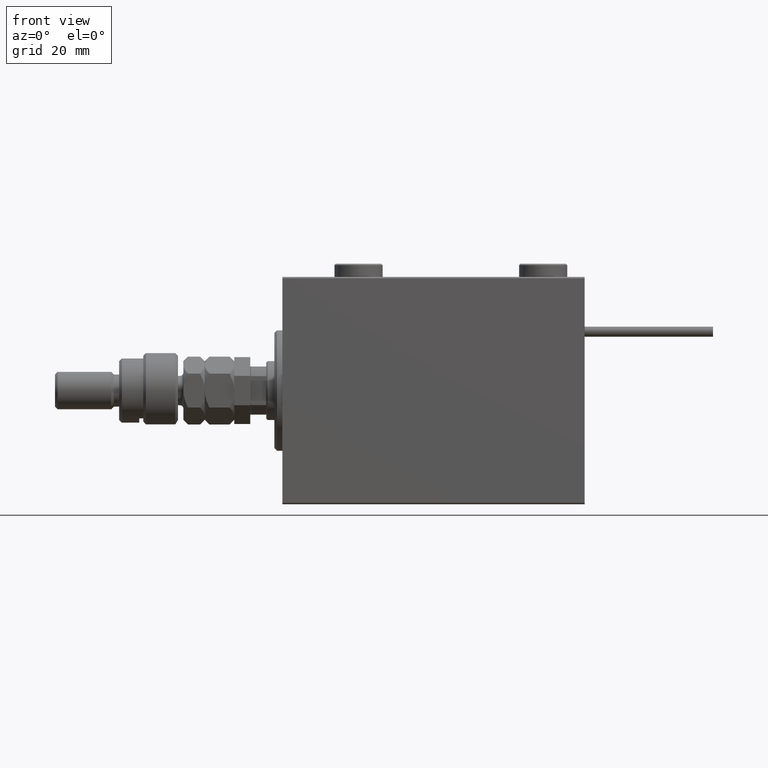
[diagram: clean part render]
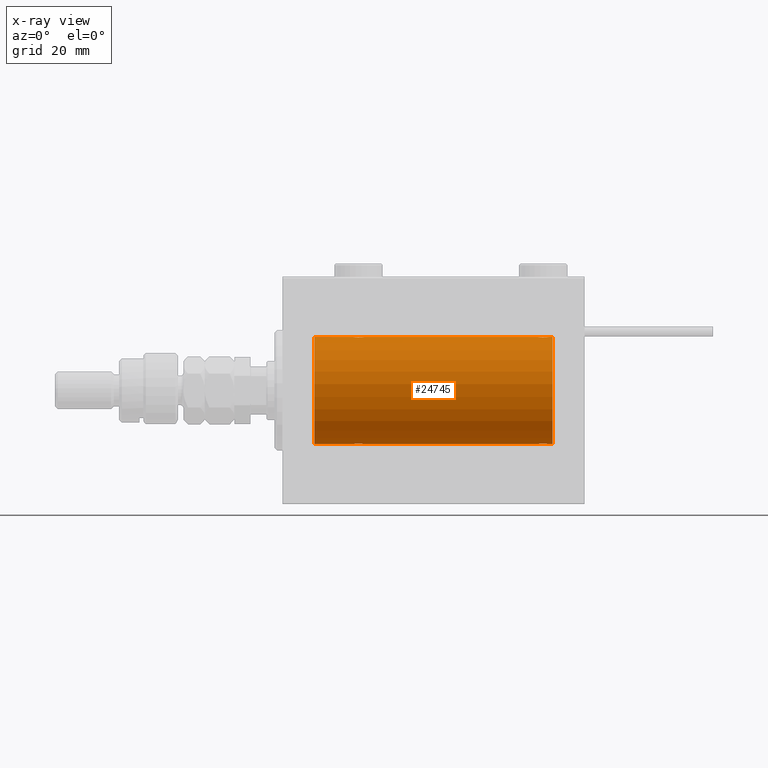
[diagram: x-ray — body ghosted, one internal face saturated and labeled with its STEP entity id]
A machine part, front view, then the same camera in x-ray: the body is ghosted and one INTERNAL B-rep face — a face not visible from any outside direction — is saturated and labeled: STEP entity #24745.
In plain terms, the highlighted cylindrical surface (partial cylindrical patch) has radius 20 mm, axis along (-1, -0, -0).
Its self-contained STEP definition (entity closure, byte-faithful):
#1023 = DIRECTION ( 'NONE',  ( -1.000000000000000000, -0.000000000000000000, -0.000000000000000000 ) ) ;
#1105 = VERTEX_POINT ( 'NONE', #16637 ) ;
#1265 = CARTESIAN_POINT ( 'NONE',  ( 26.50000000000001066, -0.2644051013331030209, -20.00000000000000355 ) ) ;
#1405 = DIRECTION ( 'NONE',  ( -1.000000000000000000, 0.000000000000000000, 0.000000000000000000 ) ) ;
#1446 = CARTESIAN_POINT ( 'NONE',  ( 28.76077256031567586, -1.987205673487810298, 19.90104673894210663 ) ) ;
#1550 = CARTESIAN_POINT ( 'NONE',  ( 28.23922743968432059, -1.987205673487808966, -19.90104673894211018 ) ) ;
#2164 = B_SPLINE_CURVE_WITH_KNOTS ( 'NONE', 3,
 ( #3254, #46835, #7190, #32098, #11661, #49200, #2707, #32922, #45795, #19782, #45246, #10837, #24238, #20333, #53680, #37392, #2975, #27894, #44975, #15317, #28166, #11113, #23977, #37116, #41044, #28443 ),
 .UNSPECIFIED., .F., .F.,
 ( 4, 2, 2, 2, 2, 2, 2, 2, 2, 2, 2, 2, 4 ),
 ( 0.006256819553329824070, 0.007038738568778795009, 0.007820657584227765080, 0.008211617091952250549, 0.008602576599676736019, 0.008993536107401221488, 0.009384495615125706958, 0.009775455122850190692, 0.01016641463057467790, 0.01055737413829916163, 0.01094833364602364884, 0.01173025266147261630, 0.01251217167692158724 ),
 .UNSPECIFIED. ) ;
#2376 = CARTESIAN_POINT ( 'NONE',  ( 27.98351467081095123, -1.936551476643005198, -19.90603968831098314 ) ) ;
#2442 = CARTESIAN_POINT ( 'NONE',  ( 101.0000000000000000, 0.000000000000000000, 20.00000000000000000 ) ) ;
#2707 = CARTESIAN_POINT ( 'NONE',  ( 98.72028945794467347, -1.589957321664213330, -19.93683391378736758 ) ) ;
#2975 = CARTESIAN_POINT ( 'NONE',  ( 96.85651471266960755, -1.898187925611348081, -19.90978194174746818 ) ) ;
#2977 = DIRECTION ( 'NONE',  ( -1.000000000000000000, -0.000000000000000000, -0.000000000000000000 ) ) ;
#3254 = CARTESIAN_POINT ( 'NONE',  ( 99.50000000000000000, 2.449293582762473501E-15, -20.00000000000000000 ) ) ;
#3536 = CARTESIAN_POINT ( 'NONE',  ( 30.50000000000000000, 2.449293582768389958E-15, -20.00000000000000000 ) ) ;
#3632 = LINE ( 'NONE', #28547, #32614 ) ;
#4454 = EDGE_CURVE ( 'NONE', #11303, #19497, #4480, .T. ) ;
#4480 = LINE ( 'NONE', #39448, #37216 ) ;
#5043 = EDGE_CURVE ( 'NONE', #31978, #38219, #50668, .T. ) ;
#5076 = AXIS2_PLACEMENT_3D ( 'NONE', #18760, #1405, #18480 ) ;
#5659 = CARTESIAN_POINT ( 'NONE',  ( 27.85369326075355545, -1.897222639860597360, 19.90987429971497491 ) ) ;
#5668 = EDGE_CURVE ( 'NONE', #28377, #22302, #47988, .T. ) ;
#5935 = CARTESIAN_POINT ( 'NONE',  ( 26.90058475115969827, -1.228758402364236391, 19.96307487248084556 ) ) ;
#6041 = CARTESIAN_POINT ( 'NONE',  ( 27.28194580527848601, -1.591668229360197140, -19.93669678979812332 ) ) ;
#6186 = CARTESIAN_POINT ( 'NONE',  ( 95.55244937117491588, -0.5243189001515019543, 19.99457699142849876 ) ) ;
#7190 = CARTESIAN_POINT ( 'NONE',  ( 99.44755062882506991, -0.5243189001514980685, -19.99457699142850231 ) ) ;
#8069 = VERTEX_POINT ( 'NONE', #20431 ) ;
#8334 = ORIENTED_EDGE ( 'NONE', *, *, #55215, .T. ) ;
#8596 = ORIENTED_EDGE ( 'NONE', *, *, #5043, .F. ) ;
#9747 = VECTOR ( 'NONE', #2977, 1000.000000000000000 ) ;
#10125 = CARTESIAN_POINT ( 'NONE',  ( 29.14348528733041377, -1.898187925611340088, 19.90978194174746818 ) ) ;
#10224 = CARTESIAN_POINT ( 'NONE',  ( 29.38829437207091999, -1.796691196322316664, -19.91919800395357143 ) ) ;
#10407 = CARTESIAN_POINT ( 'NONE',  ( 30.24686976303072328, -1.008108445278687926, 19.97602680192586888 ) ) ;
#10538 = VECTOR ( 'NONE', #41898, 1000.000000000000000 ) ;
#10787 = CARTESIAN_POINT ( 'NONE',  ( 27.61420923329272981, -1.797933656607917596, -19.91908554465558367 ) ) ;
#10837 = CARTESIAN_POINT ( 'NONE',  ( 97.76358144091416591, -1.986835489085820639, -19.90108393514801222 ) ) ;
#10888 = EDGE_CURVE ( 'NONE', #1105, #28377, #3632, .T. ) ;
#10896 = CARTESIAN_POINT ( 'NONE',  ( 26.50000000000000355, -1.552596590610734385E-23, 20.00000000000000000 ) ) ;
#10925 = CARTESIAN_POINT ( 'NONE',  ( 96.61170562792906935, -1.796691196322320216, 19.91919800395356788 ) ) ;
#11113 = CARTESIAN_POINT ( 'NONE',  ( 95.90225308445270969, -1.230936344679285144, -19.96293863536309843 ) ) ;
#11303 = VERTEX_POINT ( 'NONE', #34182 ) ;
#11661 = CARTESIAN_POINT ( 'NONE',  ( 99.09941524884030173, -1.228758402364235724, -19.96307487248084556 ) ) ;
#11806 = VECTOR ( 'NONE', #45984, 1000.000000000000000 ) ;
#12060 = EDGE_CURVE ( 'NONE', #13365, #8069, #25339, .T. ) ;
#12215 = AXIS2_PLACEMENT_3D ( 'NONE', #41991, #51254, #28843 ) ;
#12265 = ORIENTED_EDGE ( 'NONE', *, *, #29402, .F. ) ;
#12523 = CARTESIAN_POINT ( 'NONE',  ( 101.0000000000000000, 0.000000000000000000, 20.00000000000000000 ) ) ;
#12691 = ORIENTED_EDGE ( 'NONE', *, *, #20873, .T. ) ;
#13365 = VERTEX_POINT ( 'NONE', #10896 ) ;
#13637 = CARTESIAN_POINT ( 'NONE',  ( 99.50000000000000000, 9.984436361108698300E-16, 20.00000000000000000 ) ) ;
#14181 = CARTESIAN_POINT ( 'NONE',  ( 29.01923512135276795, -1.935816449315124643, -19.90611141657401717 ) ) ;
#14204 = EDGE_CURVE ( 'NONE', #47668, #46268, #42547, .T. ) ;
#14221 = CARTESIAN_POINT ( 'NONE',  ( 101.0000000000000000, 0.000000000000000000, 0.000000000000000000 ) ) ;
#14350 = CARTESIAN_POINT ( 'NONE',  ( 26.75174086539981033, -1.005710574260841206, 19.97614991974274190 ) ) ;
#14618 = CARTESIAN_POINT ( 'NONE',  ( 27.27971054205535850, -1.589957321664211998, 19.93683391378736047 ) ) ;
#14863 = CARTESIAN_POINT ( 'NONE',  ( 98.01648532918906653, -1.936551476643001202, 19.90603968831098669 ) ) ;
#14898 = CARTESIAN_POINT ( 'NONE',  ( 26.55244937117492299, -0.5243189001515023984, 19.99457699142850586 ) ) ;
#14999 = CARTESIAN_POINT ( 'NONE',  ( 27.17903093152710525, -1.507328959728492457, -19.94333197382385592 ) ) ;
#15166 = ORIENTED_EDGE ( 'NONE', *, *, #12060, .T. ) ;
#15202 = VERTEX_POINT ( 'NONE', #17313 ) ;
#15317 = CARTESIAN_POINT ( 'NONE',  ( 96.28194580527851087, -1.591668229360199804, -19.93669678979812687 ) ) ;
#15671 = CARTESIAN_POINT ( 'NONE',  ( 96.85369326075360163, -1.897222639860597360, 19.90987429971497491 ) ) ;
#15941 = CARTESIAN_POINT ( 'NONE',  ( 98.71805419472153176, -1.591668229360190034, 19.93669678979813042 ) ) ;
#16637 = CARTESIAN_POINT ( 'NONE',  ( 26.50000000000000355, -3.809869420541414000E-15, -20.00000000000000000 ) ) ;
#16686 = EDGE_CURVE ( 'NONE', #47668, #8069, #33784, .T. ) ;
#17297 = ORIENTED_EDGE ( 'NONE', *, *, #4454, .T. ) ;
#17313 = CARTESIAN_POINT ( 'NONE',  ( 99.50000000000000000, 2.449293582762473501E-15, -20.00000000000000000 ) ) ;
#18093 = ORIENTED_EDGE ( 'NONE', *, *, #35972, .F. ) ;
#18135 = VECTOR ( 'NONE', #54222, 1000.000000000000000 ) ;
#18342 = CARTESIAN_POINT ( 'NONE',  ( 30.49999999999999645, -0.2610801504281900498, -19.99999999999999645 ) ) ;
#18403 = EDGE_LOOP ( 'NONE', ( #8596, #8334, #44403, #17297, #12691, #31896, #39699, #18093, #15166, #40687, #51786, #12265 ) ) ;
#18480 = DIRECTION ( 'NONE',  ( 0.000000000000000000, 0.000000000000000000, 1.000000000000000000 ) ) ;
#18521 = CARTESIAN_POINT ( 'NONE',  ( 29.38579076670729151, -1.797933656607919817, 19.91908554465558367 ) ) ;
#18629 = CARTESIAN_POINT ( 'NONE',  ( 27.49932780860757475, -1.736582545981376180, -19.92459705242981371 ) ) ;
#18760 = CARTESIAN_POINT ( 'NONE',  ( 11.99999999999999645, 0.000000000000000000, 0.000000000000000000 ) ) ;
#18799 = CARTESIAN_POINT ( 'NONE',  ( 27.17693331080528907, -1.505486175075773758, 19.94347168299867690 ) ) ;
#18895 = CARTESIAN_POINT ( 'NONE',  ( 26.90225308445269903, -1.230936344679278260, -19.96293863536309132 ) ) ;
#18929 = FACE_OUTER_BOUND ( 'NONE', #18403, .T. ) ;
#19040 = CARTESIAN_POINT ( 'NONE',  ( 95.75174086539981033, -1.005710574260841872, 19.97614991974274190 ) ) ;
#19326 = CARTESIAN_POINT ( 'NONE',  ( 95.50000000000000000, -1.553188236289650144E-23, 20.00000000000000000 ) ) ;
#19497 = VERTEX_POINT ( 'NONE', #3536 ) ;
#19782 = CARTESIAN_POINT ( 'NONE',  ( 98.14630673924646942, -1.897222639860602245, -19.90987429971496425 ) ) ;
#19962 = CARTESIAN_POINT ( 'NONE',  ( 101.0000000000000000, 0.000000000000000000, 20.00000000000000000 ) ) ;
#20141 = CARTESIAN_POINT ( 'NONE',  ( 99.09774691554729031, -1.230936344679272043, 19.96293863536309487 ) ) ;
#20333 = CARTESIAN_POINT ( 'NONE',  ( 97.36941128289166159, -2.000100592782561471, -19.89973863218036243 ) ) ;
#20421 = CARTESIAN_POINT ( 'NONE',  ( 99.50000000000000000, 9.984436361108698300E-16, 20.00000000000000000 ) ) ;
#20431 = CARTESIAN_POINT ( 'NONE',  ( 30.50000000000000000, -4.014971335008767791E-15, 20.00000000000000000 ) ) ;
#20602 = LINE ( 'NONE', #41312, #9747 ) ;
#20873 = EDGE_CURVE ( 'NONE', #19497, #1105, #47676, .T. ) ;
#22302 = VERTEX_POINT ( 'NONE', #32811 ) ;
#22554 = CARTESIAN_POINT ( 'NONE',  ( 29.50306556339602437, -1.735203193119894349, -19.92471783160910803 ) ) ;
#23100 = CARTESIAN_POINT ( 'NONE',  ( 30.09941524884030173, -1.228758402364235502, -19.96307487248084911 ) ) ;
#23364 = CARTESIAN_POINT ( 'NONE',  ( 30.24825913460018612, -1.005710574260838985, -19.97614991974274190 ) ) ;
#23977 = CARTESIAN_POINT ( 'NONE',  ( 95.75313023696931225, -1.008108445278694587, -19.97602680192586888 ) ) ;
#24068 = CARTESIAN_POINT ( 'NONE',  ( 97.36634803857555198, -1.999898234284061216, 19.89975896996866922 ) ) ;
#24238 = CARTESIAN_POINT ( 'NONE',  ( 97.63365196142450486, -1.999898234284069432, -19.89975896996866211 ) ) ;
#24745 = ADVANCED_FACE ( 'NONE', ( #18929 ), #36000, .F. ) ;
#24885 = CARTESIAN_POINT ( 'NONE',  ( 98.82096906847290541, -1.507328959728488238, 19.94333197382385947 ) ) ;
#25339 = B_SPLINE_CURVE_WITH_KNOTS ( 'NONE', 3,
 ( #40066, #45089, #14898, #14350, #5935, #18799, #14618, #53248, #27189, #5659, #35866, #52975, #44823, #49053, #1446, #31659, #10125, #18521, #31392, #31946, #27739, #48767, #10407, #48488, #31130, #27469 ),
 .UNSPECIFIED., .F., .F.,
 ( 4, 2, 2, 2, 2, 2, 2, 2, 2, 2, 2, 2, 4 ),
 ( 0.006256819553329811059, 0.007038738568778783733, 0.007820657584227756406, 0.008211617091952238406, 0.008602576599676722141, 0.008993536107401204141, 0.009384495615125686141, 0.009775455122850168141, 0.01016641463057465014, 0.01055737413829913214, 0.01094833364602361414, 0.01173025266147257814, 0.01251217167692154214 ),
 .UNSPECIFIED. ) ;
#27189 = CARTESIAN_POINT ( 'NONE',  ( 27.61170562792909422, -1.796691196322319994, 19.91919800395357143 ) ) ;
#27288 = CARTESIAN_POINT ( 'NONE',  ( 30.44755062882508412, -0.5243189001514996228, -19.99457699142849876 ) ) ;
#27469 = CARTESIAN_POINT ( 'NONE',  ( 30.50000000000000000, -4.014971335008767791E-15, 20.00000000000000000 ) ) ;
#27739 = CARTESIAN_POINT ( 'NONE',  ( 29.82096906847289119, -1.507328959728493567, 19.94333197382385592 ) ) ;
#27894 = CARTESIAN_POINT ( 'NONE',  ( 96.61420923329271204, -1.797933656607926700, -19.91908554465557302 ) ) ;
#27980 = CARTESIAN_POINT ( 'NONE',  ( 96.98076487864724982, -1.935816449315123977, 19.90611141657402072 ) ) ;
#28166 = CARTESIAN_POINT ( 'NONE',  ( 96.17903093152715144, -1.507328959728500006, -19.94333197382386302 ) ) ;
#28377 = VERTEX_POINT ( 'NONE', #44113 ) ;
#28443 = CARTESIAN_POINT ( 'NONE',  ( 95.50000000000000000, -1.207436508668459186E-14, -20.00000000000000000 ) ) ;
#28547 = CARTESIAN_POINT ( 'NONE',  ( 101.0000000000000000, 2.449293598294706513E-15, -20.00000000000000000 ) ) ;
#28843 = DIRECTION ( 'NONE',  ( 0.000000000000000000, 0.000000000000000000, 1.000000000000000000 ) ) ;
#29361 = CARTESIAN_POINT ( 'NONE',  ( 99.24686976303073038, -1.008108445278681931, 19.97602680192586178 ) ) ;
#29402 = EDGE_CURVE ( 'NONE', #38219, #46268, #37845, .T. ) ;
#31111 = EDGE_CURVE ( 'NONE', #15202, #11303, #2164, .T. ) ;
#31130 = CARTESIAN_POINT ( 'NONE',  ( 30.49999999999999289, -0.2644051013330969702, 20.00000000000000711 ) ) ;
#31224 = CARTESIAN_POINT ( 'NONE',  ( 26.55320515808203297, -0.5270924491156698810, -19.99450181871976184 ) ) ;
#31392 = CARTESIAN_POINT ( 'NONE',  ( 29.50067219139244656, -1.736582545981375292, 19.92459705242981371 ) ) ;
#31659 = CARTESIAN_POINT ( 'NONE',  ( 29.01648532918905943, -1.936551476643006753, 19.90603968831098669 ) ) ;
#31896 = ORIENTED_EDGE ( 'NONE', *, *, #10888, .T. ) ;
#31946 = CARTESIAN_POINT ( 'NONE',  ( 29.71805419472152110, -1.591668229360196252, 19.93669678979812332 ) ) ;
#31978 = VERTEX_POINT ( 'NONE', #43217 ) ;
#32046 = CARTESIAN_POINT ( 'NONE',  ( 26.75313023696928738, -1.008108445278687704, -19.97602680192586533 ) ) ;
#32098 = CARTESIAN_POINT ( 'NONE',  ( 99.24825913460016125, -1.005710574260839651, -19.97614991974274901 ) ) ;
#32184 = CARTESIAN_POINT ( 'NONE',  ( 96.17693331080533881, -1.505486175075777311, 19.94347168299868045 ) ) ;
#32614 = VECTOR ( 'NONE', #50120, 1000.000000000000000 ) ;
#32730 = CARTESIAN_POINT ( 'NONE',  ( 97.63058871710833841, -2.000100592782551256, 19.89973863218035888 ) ) ;
#32811 = CARTESIAN_POINT ( 'NONE',  ( 11.99999999999999645, 0.000000000000000000, 20.00000000000000000 ) ) ;
#32922 = CARTESIAN_POINT ( 'NONE',  ( 98.50306556339604924, -1.735203193119900122, -19.92471783160911158 ) ) ;
#33550 = CARTESIAN_POINT ( 'NONE',  ( 98.14348528733043509, -1.898187925611334315, 19.90978194174746818 ) ) ;
#33784 = LINE ( 'NONE', #12523, #10538 ) ;
#34097 = CARTESIAN_POINT ( 'NONE',  ( 99.50000000000000000, -0.2644051013330985245, 19.99999999999999645 ) ) ;
#34182 = CARTESIAN_POINT ( 'NONE',  ( 95.50000000000000000, -1.207436508668459186E-14, -20.00000000000000000 ) ) ;
#35418 = CARTESIAN_POINT ( 'NONE',  ( 26.50000000000000355, -3.809869420541414000E-15, -20.00000000000000000 ) ) ;
#35866 = CARTESIAN_POINT ( 'NONE',  ( 27.98076487864722495, -1.935816449315125087, 19.90611141657401362 ) ) ;
#35972 = EDGE_CURVE ( 'NONE', #13365, #22302, #40773, .T. ) ;
#36000 = CYLINDRICAL_SURFACE ( 'NONE', #53628, 20.00000000000000000 ) ;
#36109 = CARTESIAN_POINT ( 'NONE',  ( 96.49693443660399339, -1.735203193119890352, 19.92471783160910803 ) ) ;
#36238 = CARTESIAN_POINT ( 'NONE',  ( 30.50000000000000000, 2.449293582768389958E-15, -20.00000000000000000 ) ) ;
#36663 = CARTESIAN_POINT ( 'NONE',  ( 95.90058475115969827, -1.228758402364240609, 19.96307487248084911 ) ) ;
#37116 = CARTESIAN_POINT ( 'NONE',  ( 95.55320515808205073, -0.5270924491156777636, -19.99450181871976540 ) ) ;
#37204 = CARTESIAN_POINT ( 'NONE',  ( 99.44679484191794927, -0.5270924491156651071, 19.99450181871975829 ) ) ;
#37216 = VECTOR ( 'NONE', #39180, 1000.000000000000000 ) ;
#37392 = CARTESIAN_POINT ( 'NONE',  ( 96.98351467081093347, -1.936551476643015191, -19.90603968831098669 ) ) ;
#37845 = LINE ( 'NONE', #19962, #11806 ) ;
#38219 = VERTEX_POINT ( 'NONE', #48709 ) ;
#39180 = DIRECTION ( 'NONE',  ( -1.000000000000000000, -0.000000000000000000, -0.000000000000000000 ) ) ;
#39448 = CARTESIAN_POINT ( 'NONE',  ( 101.0000000000000000, 2.449293598294706513E-15, -20.00000000000000000 ) ) ;
#39699 = ORIENTED_EDGE ( 'NONE', *, *, #5668, .T. ) ;
#40066 = CARTESIAN_POINT ( 'NONE',  ( 26.50000000000000355, -1.552596590610734385E-23, 20.00000000000000000 ) ) ;
#40687 = ORIENTED_EDGE ( 'NONE', *, *, #16686, .F. ) ;
#40773 = LINE ( 'NONE', #2442, #18135 ) ;
#41044 = CARTESIAN_POINT ( 'NONE',  ( 95.50000000000002842, -0.2644051013331136790, -20.00000000000000355 ) ) ;
#41312 = CARTESIAN_POINT ( 'NONE',  ( 101.0000000000000000, 2.449293598294706513E-15, -20.00000000000000000 ) ) ;
#41898 = DIRECTION ( 'NONE',  ( -1.000000000000000000, -0.000000000000000000, -0.000000000000000000 ) ) ;
#41991 = CARTESIAN_POINT ( 'NONE',  ( 101.0000000000000000, 0.000000000000000000, 0.000000000000000000 ) ) ;
#42547 = B_SPLINE_CURVE_WITH_KNOTS ( 'NONE', 3,
 ( #19326, #44518, #6186, #19040, #36663, #32184, #49286, #36109, #10925, #15671, #27980, #45343, #24068, #32730, #53217, #14863, #33550, #50374, #55129, #15941, #24885, #20141, #29361, #37204, #34097, #20421 ),
 .UNSPECIFIED., .F., .F.,
 ( 4, 2, 2, 2, 2, 2, 2, 2, 2, 2, 2, 2, 4 ),
 ( 0.006256819553329836213, 0.007038738568778784600, 0.007820657584227733855, 0.008211617091952222794, 0.008602576599676711733, 0.008993536107401198937, 0.009384495615125687876, 0.009775455122850176815, 0.01016641463057466402, 0.01055737413829915296, 0.01094833364602364190, 0.01173025266147261630, 0.01251217167692159418 ),
 .UNSPECIFIED. ) ;
#43217 = CARTESIAN_POINT ( 'NONE',  ( 101.0000000000000000, 2.449293598294706513E-15, -20.00000000000000000 ) ) ;
#44113 = CARTESIAN_POINT ( 'NONE',  ( 11.99999999999999645, 2.449293598294706513E-15, -20.00000000000000000 ) ) ;
#44368 = CARTESIAN_POINT ( 'NONE',  ( 28.36941128289166159, -2.000100592782553921, -19.89973863218036598 ) ) ;
#44403 = ORIENTED_EDGE ( 'NONE', *, *, #31111, .T. ) ;
#44518 = CARTESIAN_POINT ( 'NONE',  ( 95.50000000000001421, -0.2610801504281927699, 20.00000000000000355 ) ) ;
#44651 = CARTESIAN_POINT ( 'NONE',  ( 28.63365196142448355, -1.999898234284062992, -19.89975896996866211 ) ) ;
#44823 = CARTESIAN_POINT ( 'NONE',  ( 28.36634803857552001, -1.999898234284063436, 19.89975896996866211 ) ) ;
#44975 = CARTESIAN_POINT ( 'NONE',  ( 96.49932780860756054, -1.736582545981379289, -19.92459705242981016 ) ) ;
#45089 = CARTESIAN_POINT ( 'NONE',  ( 26.50000000000000711, -0.2610801504281929919, 20.00000000000000000 ) ) ;
#45246 = CARTESIAN_POINT ( 'NONE',  ( 98.01923512135277861, -1.935816449315129750, -19.90611141657401362 ) ) ;
#45343 = CARTESIAN_POINT ( 'NONE',  ( 97.23641855908584830, -1.986835489085812867, 19.90108393514801577 ) ) ;
#45795 = CARTESIAN_POINT ( 'NONE',  ( 98.38829437207090223, -1.796691196322323103, -19.91919800395357143 ) ) ;
#45984 = DIRECTION ( 'NONE',  ( -1.000000000000000000, -0.000000000000000000, -0.000000000000000000 ) ) ;
#46268 = VERTEX_POINT ( 'NONE', #13637 ) ;
#46835 = CARTESIAN_POINT ( 'NONE',  ( 99.49999999999998579, -0.2610801504281911045, -19.99999999999999645 ) ) ;
#47668 = VERTEX_POINT ( 'NONE', #50489 ) ;
#47676 = B_SPLINE_CURVE_WITH_KNOTS ( 'NONE', 3,
 ( #36238, #18342, #27288, #23364, #23100, #53350, #52534, #22554, #10224, #53627, #14181, #48312, #44651, #44368, #1550, #2376, #52802, #10787, #18629, #6041, #14999, #18895, #32046, #31224, #1265, #35418 ),
 .UNSPECIFIED., .F., .F.,
 ( 4, 2, 2, 2, 2, 2, 2, 2, 2, 2, 2, 2, 4 ),
 ( 0.006256819553329842284, 0.007038738568778818427, 0.007820657584227792836, 0.008211617091952278305, 0.008602576599676762040, 0.008993536107401245774, 0.009384495615125729509, 0.009775455122850213244, 0.01016641463057469871, 0.01055737413829918071, 0.01094833364602366618, 0.01173025266147263365, 0.01251217167692159939 ),
 .UNSPECIFIED. ) ;
#47988 = CIRCLE ( 'NONE', #5076, 20.00000000000000000 ) ;
#48312 = CARTESIAN_POINT ( 'NONE',  ( 28.76358144091416236, -1.986835489085814199, -19.90108393514801222 ) ) ;
#48488 = CARTESIAN_POINT ( 'NONE',  ( 30.44679484191797414, -0.5270924491156706582, 19.99450181871975829 ) ) ;
#48709 = CARTESIAN_POINT ( 'NONE',  ( 101.0000000000000000, 0.000000000000000000, 20.00000000000000000 ) ) ;
#48767 = CARTESIAN_POINT ( 'NONE',  ( 30.09774691554730097, -1.230936344679278482, 19.96293863536309132 ) ) ;
#49053 = CARTESIAN_POINT ( 'NONE',  ( 28.63058871710834552, -2.000100592782553921, 19.89973863218035888 ) ) ;
#49200 = CARTESIAN_POINT ( 'NONE',  ( 98.82306668919471804, -1.505486175075774646, -19.94347168299867334 ) ) ;
#49286 = CARTESIAN_POINT ( 'NONE',  ( 96.27971054205538337, -1.589957321664204448, 19.93683391378736403 ) ) ;
#50120 = DIRECTION ( 'NONE',  ( -1.000000000000000000, -0.000000000000000000, -0.000000000000000000 ) ) ;
#50374 = CARTESIAN_POINT ( 'NONE',  ( 98.38579076670728796, -1.797933656607910713, 19.91908554465557657 ) ) ;
#50489 = CARTESIAN_POINT ( 'NONE',  ( 95.50000000000000000, -1.553188236289650144E-23, 20.00000000000000000 ) ) ;
#50668 = CIRCLE ( 'NONE', #12215, 20.00000000000000000 ) ;
#51254 = DIRECTION ( 'NONE',  ( -1.000000000000000000, 0.000000000000000000, 0.000000000000000000 ) ) ;
#51786 = ORIENTED_EDGE ( 'NONE', *, *, #14204, .T. ) ;
#52534 = CARTESIAN_POINT ( 'NONE',  ( 29.72028945794465571, -1.589957321664208223, -19.93683391378736047 ) ) ;
#52802 = CARTESIAN_POINT ( 'NONE',  ( 27.85651471266959334, -1.898187925611338533, -19.90978194174746818 ) ) ;
#52975 = CARTESIAN_POINT ( 'NONE',  ( 28.23641855908585541, -1.986835489085814643, 19.90108393514801222 ) ) ;
#53104 = DIRECTION ( 'NONE',  ( 0.000000000000000000, 0.000000000000000000, 1.000000000000000000 ) ) ;
#53217 = CARTESIAN_POINT ( 'NONE',  ( 97.76077256031565810, -1.987205673487806967, 19.90104673894210663 ) ) ;
#53248 = CARTESIAN_POINT ( 'NONE',  ( 27.49693443660397918, -1.735203193119897902, 19.92471783160911158 ) ) ;
#53350 = CARTESIAN_POINT ( 'NONE',  ( 29.82306668919470383, -1.505486175075772870, -19.94347168299867334 ) ) ;
#53627 = CARTESIAN_POINT ( 'NONE',  ( 29.14630673924643744, -1.897222639860594029, -19.90987429971496780 ) ) ;
#53628 = AXIS2_PLACEMENT_3D ( 'NONE', #14221, #1023, #53104 ) ;
#53680 = CARTESIAN_POINT ( 'NONE',  ( 97.23922743968432769, -1.987205673487818514, -19.90104673894210663 ) ) ;
#54222 = DIRECTION ( 'NONE',  ( -1.000000000000000000, -0.000000000000000000, -0.000000000000000000 ) ) ;
#55129 = CARTESIAN_POINT ( 'NONE',  ( 98.50067219139243946, -1.736582545981368852, 19.92459705242980661 ) ) ;
#55215 = EDGE_CURVE ( 'NONE', #31978, #15202, #20602, .T. ) ;